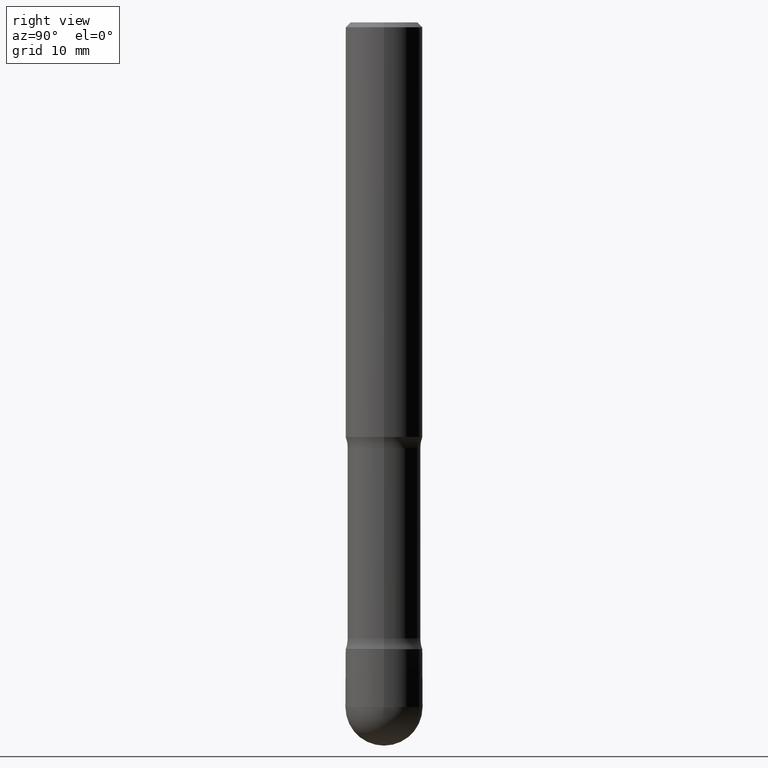
[diagram: clean part render]
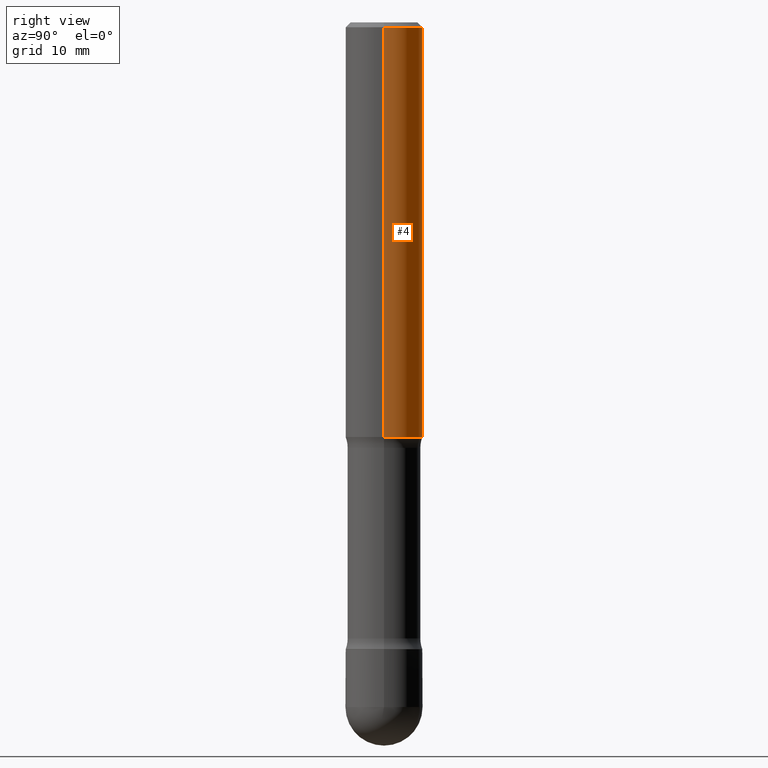
[diagram: same view with one face highlighted and labeled with its STEP entity id]
A machine part, right view. The second image highlights one B-rep face of the part: STEP entity #4.
In plain terms, the highlighted cylindrical surface (partial cylindrical patch) has radius 4.0005 mm, axis along (0, -0, -1).
Its self-contained STEP definition (entity closure, byte-faithful):
#4 = ADVANCED_FACE ( 'NONE', ( #20 ), #461, .T. ) ;
#18 = VERTEX_POINT ( 'NONE', #31 ) ;
#20 = FACE_OUTER_BOUND ( 'NONE', #94, .T. ) ;
#31 = CARTESIAN_POINT ( 'NONE',  ( 0.1575000000000000011, -4.070982201368173666E-15, -1.693000000000002503 ) ) ;
#68 = EDGE_CURVE ( 'NONE', #88, #462, #197, .T. ) ;
#72 = DIRECTION ( 'NONE',  ( 2.445468806185136597E-29, -3.491481338843145583E-15, -1.000000000000000000 ) ) ;
#88 = VERTEX_POINT ( 'NONE', #331 ) ;
#94 = EDGE_LOOP ( 'NONE', ( #289, #448, #186, #480 ) ) ;
#121 = DIRECTION ( 'NONE',  ( -1.000000000000000000, 6.982962677686266711E-15, 0.000000000000000000 ) ) ;
#136 = VECTOR ( 'NONE', #224, 39.37007874015748143 ) ;
#145 = CARTESIAN_POINT ( 'NONE',  ( 4.890937612370220610E-31, -6.982962677686216421E-17, -0.01999999999999978531 ) ) ;
#157 = DIRECTION ( 'NONE',  ( 2.445468806185136597E-29, -3.491481338843145583E-15, -1.000000000000000000 ) ) ;
#159 = CARTESIAN_POINT ( 'NONE',  ( 0.1574999999999997513, -1.150358061425876711E-15, -0.01999999999999978531 ) ) ;
#170 = CARTESIAN_POINT ( 'NONE',  ( 0.1574999999999998901, -1.001557832888250797E-14, -2.559099999999999486 ) ) ;
#186 = ORIENTED_EDGE ( 'NONE', *, *, #368, .F. ) ;
#192 = CIRCLE ( 'NONE', #522, 0.1575000000000000011 ) ;
#197 = CIRCLE ( 'NONE', #240, 0.1574999999999997513 ) ;
#200 = DIRECTION ( 'NONE',  ( -1.000000000000000000, 6.982962677686266711E-15, 0.000000000000000000 ) ) ;
#223 = DIRECTION ( 'NONE',  ( 2.445468806185136877E-29, -3.491481338843145188E-15, -1.000000000000000000 ) ) ;
#224 = DIRECTION ( 'NONE',  ( 2.445468806185136877E-29, -3.491481338843145188E-15, -1.000000000000000000 ) ) ;
#225 = DIRECTION ( 'NONE',  ( 2.445468806185136597E-29, -3.491481338843145583E-15, -1.000000000000000000 ) ) ;
#240 = AXIS2_PLACEMENT_3D ( 'NONE', #145, #157, #121 ) ;
#250 = EDGE_CURVE ( 'NONE', #462, #18, #407, .T. ) ;
#251 = CARTESIAN_POINT ( 'NONE',  ( 6.258199221908381703E-29, -8.935049894233492186E-15, -2.559099999999999486 ) ) ;
#278 = VERTEX_POINT ( 'NONE', #519 ) ;
#289 = ORIENTED_EDGE ( 'NONE', *, *, #68, .T. ) ;
#327 = VECTOR ( 'NONE', #223, 39.37007874015748143 ) ;
#331 = CARTESIAN_POINT ( 'NONE',  ( -0.1574999999999997513, 1.029986994958723196E-15, -0.01999999999999978531 ) ) ;
#368 = EDGE_CURVE ( 'NONE', #278, #18, #192, .T. ) ;
#405 = DIRECTION ( 'NONE',  ( -1.000000000000000000, 6.982962677686268288E-15, 0.000000000000000000 ) ) ;
#407 = LINE ( 'NONE', #170, #327 ) ;
#448 = ORIENTED_EDGE ( 'NONE', *, *, #250, .T. ) ;
#461 = CYLINDRICAL_SURFACE ( 'NONE', #521, 0.1574999999999998901 ) ;
#462 = VERTEX_POINT ( 'NONE', #159 ) ;
#480 = ORIENTED_EDGE ( 'NONE', *, *, #508, .F. ) ;
#493 = LINE ( 'NONE', #524, #136 ) ;
#508 = EDGE_CURVE ( 'NONE', #88, #278, #493, .T. ) ;
#519 = CARTESIAN_POINT ( 'NONE',  ( -0.1575000000000000011, -4.811261284925866573E-15, -1.693000000000002503 ) ) ;
#521 = AXIS2_PLACEMENT_3D ( 'NONE', #251, #72, #200 ) ;
#522 = AXIS2_PLACEMENT_3D ( 'NONE', #542, #225, #405 ) ;
#524 = CARTESIAN_POINT ( 'NONE',  ( -0.1574999999999998901, -7.835233272497907073E-15, -2.559099999999999486 ) ) ;
#542 = CARTESIAN_POINT ( 'NONE',  ( 4.140178688871442186E-29, -5.911077906661454053E-15, -1.693000000000002503 ) ) ;